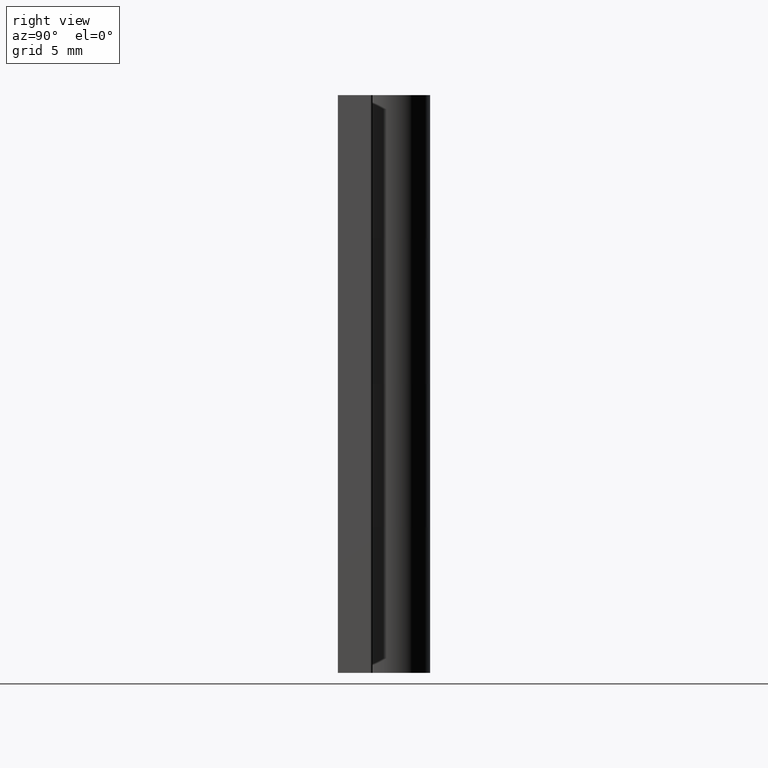
[diagram: clean part render]
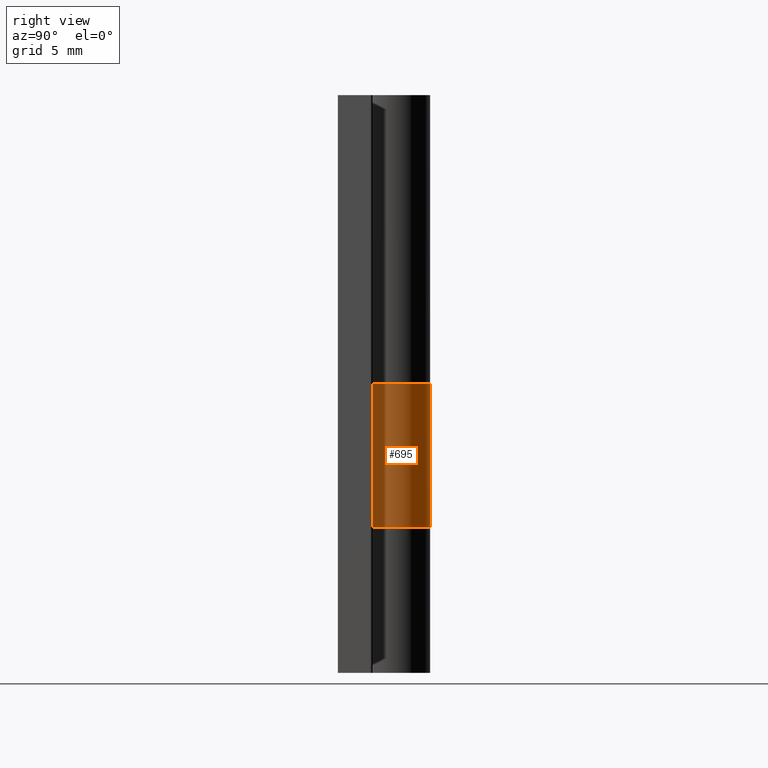
[diagram: same view with one face highlighted and labeled with its STEP entity id]
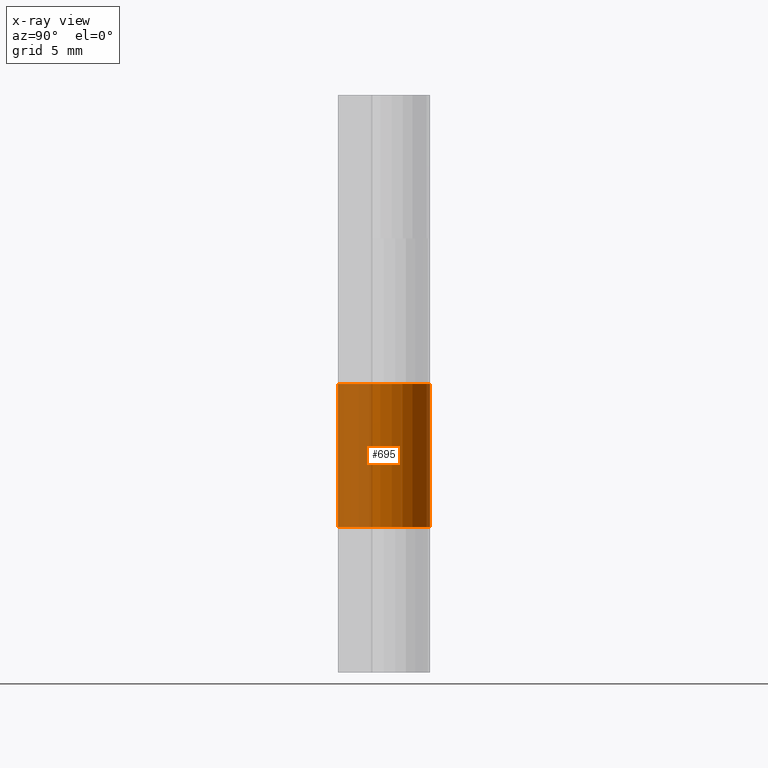
[diagram: x-ray of the same camera — body ghosted, the highlighted face saturated]
A machine part, right view. The second image highlights one B-rep face of the part: STEP entity #695.
The next image is the same camera in x-ray: the body ghosted, the highlighted face saturated — about 38% of this face is hidden behind the body in this view.
In plain terms, the highlighted cylindrical surface (partial cylindrical patch) has radius 2 mm, axis along (0, 0, 1).
Its self-contained STEP definition (entity closure, byte-faithful):
#40=CYLINDRICAL_SURFACE('',#749,2.);
#83=CIRCLE('',#735,2.);
#85=CIRCLE('',#738,2.);
#124=FACE_OUTER_BOUND('',#170,.T.);
#170=EDGE_LOOP('',(#529,#530,#531,#532));
#246=LINE('',#1083,#300);
#248=LINE('',#1093,#302);
#300=VECTOR('',#858,6.2);
#302=VECTOR('',#870,6.2);
#340=VERTEX_POINT('',#1043);
#341=VERTEX_POINT('',#1044);
#344=VERTEX_POINT('',#1052);
#346=VERTEX_POINT('',#1056);
#406=EDGE_CURVE('',#340,#341,#83,.T.);
#413=EDGE_CURVE('',#344,#346,#85,.T.);
#426=EDGE_CURVE('',#341,#344,#246,.T.);
#431=EDGE_CURVE('',#340,#346,#248,.T.);
#529=ORIENTED_EDGE('',*,*,#406,.T.);
#530=ORIENTED_EDGE('',*,*,#426,.T.);
#531=ORIENTED_EDGE('',*,*,#413,.T.);
#532=ORIENTED_EDGE('',*,*,#431,.F.);
#695=ADVANCED_FACE('',(#124),#40,.T.);
#735=AXIS2_PLACEMENT_3D('',#1045,#824,#825);
#738=AXIS2_PLACEMENT_3D('',#1058,#835,#836);
#749=AXIS2_PLACEMENT_3D('',#1092,#868,#869);
#824=DIRECTION('center_axis',(-7.40148683083438E-16,0.,1.));
#825=DIRECTION('ref_axis',(-1.,0.,0.));
#835=DIRECTION('center_axis',(0.,0.,-1.));
#836=DIRECTION('ref_axis',(-1.,0.,0.));
#858=DIRECTION('',(0.,0.,1.));
#868=DIRECTION('center_axis',(0.,0.,1.));
#869=DIRECTION('ref_axis',(-1.,0.,0.));
#870=DIRECTION('',(0.,0.,1.));
#1043=CARTESIAN_POINT('',(0.,0.,-6.2));
#1044=CARTESIAN_POINT('',(-1.93649167310371,1.5,-6.2));
#1045=CARTESIAN_POINT('Origin',(0.,2.,-6.2));
#1052=CARTESIAN_POINT('',(-1.93649167310371,1.5,3.33066907387547E-15));
#1056=CARTESIAN_POINT('',(0.,0.,3.33066907387547E-15));
#1058=CARTESIAN_POINT('Origin',(0.,2.,3.33066907387547E-15));
#1083=CARTESIAN_POINT('',(-1.93649167310371,1.5,0.));
#1092=CARTESIAN_POINT('Origin',(0.,2.,0.));
#1093=CARTESIAN_POINT('',(0.,0.,0.));